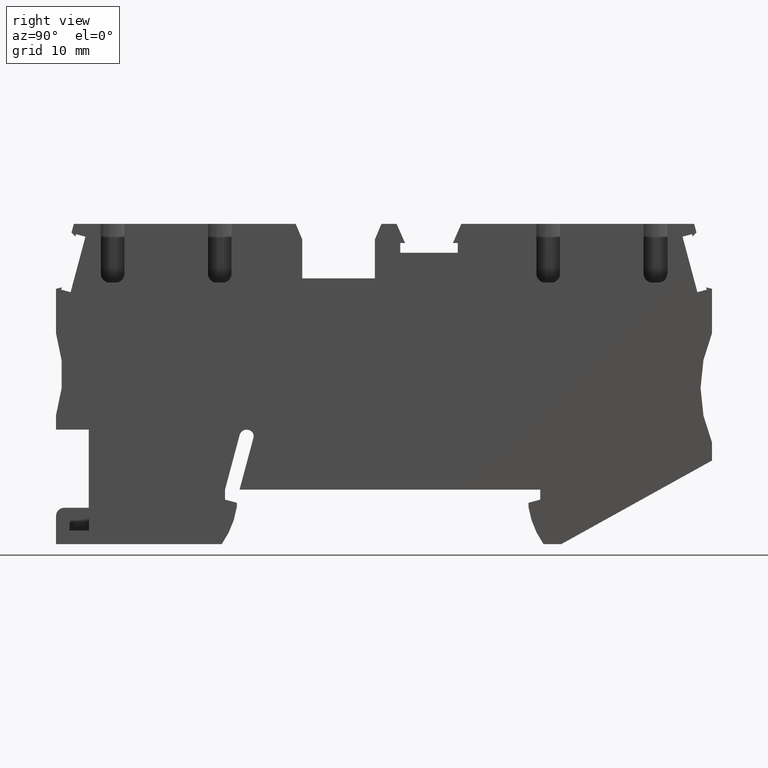
[diagram: clean part render]
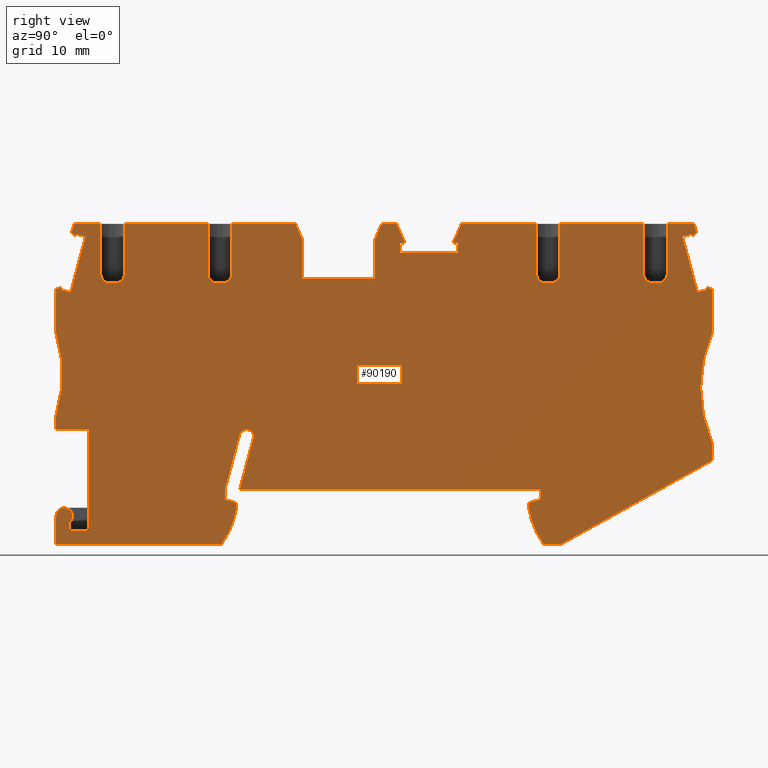
[diagram: same view with one face highlighted and labeled with its STEP entity id]
A machine part, right view. The second image highlights one B-rep face of the part: STEP entity #90190.
In plain terms, the highlighted planar face has unit normal (1, -0, 0).
Its self-contained STEP definition (entity closure, byte-faithful):
#4920=CARTESIAN_POINT('',(0.099605594521837,5.13367126584743E-13,
2.79951145379018E-12));
#4930=DIRECTION('',(-0.121869343404765,0.99254615164137,
-1.26162968961438E-13));
#4940=VECTOR('',#4930,1.);
#4950=LINE('',#4920,#4940);
#4960=CARTESIAN_POINT('',(0.849796820895159,-6.10981723483041,
-5.06899196408571E-12));
#4970=VERTEX_POINT('',#4960);
#4980=CARTESIAN_POINT('',(0.472001856341802,-3.03292416475368,
-3.95723683673764E-12));
#4990=VERTEX_POINT('',#4980);
#5000=EDGE_CURVE('',#4970,#4990,#4950,.T.);
#6190=CARTESIAN_POINT('',(18.579939487428,2.11222949998738,
-5.33404559022392E-12));
#6200=VERTEX_POINT('',#6190);
#6280=CARTESIAN_POINT('',(18.7139957651746,1.02042873317376,
-5.72861813511495E-12));
#6290=VERTEX_POINT('',#6280);
#6320=CARTESIAN_POINT('',(18.83928865911,5.13367126583545E-13,
3.08687232803303E-12));
#6330=DIRECTION('',(0.121869343405148,-0.992546151641323,
1.26162968961438E-13));
#6340=VECTOR('',#6330,1.);
#6350=LINE('',#6320,#6340);
#6360=EDGE_CURVE('',#6200,#6290,#6350,.T.);
#6590=CARTESIAN_POINT('',(20.0467569920994,0.833121357882625,
-6.02251513039278E-12));
#6600=VERTEX_POINT('',#6590);
#6630=CARTESIAN_POINT('',(-6.139533326109E-14,3.65050931863046,
2.34083951193818E-12));
#6640=DIRECTION('',(0.990268068741556,-0.139173100960171,
3.26134326783089E-14));
#6650=VECTOR('',#6640,1.);
#6660=LINE('',#6630,#6650);
#6670=EDGE_CURVE('',#6290,#6600,#6660,.T.);
#6920=CARTESIAN_POINT('',(2.04257352466948,-3.51594034940958,
-4.3928025885387E-12));
#6930=VERTEX_POINT('',#6920);
#6960=CARTESIAN_POINT('',(1.36529339281687,-2.92324175568978,
-4.07420139160326E-12));
#6970=DIRECTION('',(-8.02853260974632E-13,-3.78636309968469E-13,1.));
#6980=DIRECTION('',(0.992546151641275,0.12186934340553,
8.43013072998369E-13));
#6990=AXIS2_PLACEMENT_3D('',#6960,#6970,#6980);
#7000=CIRCLE('',#6990,0.89999999999984);
#7010=EDGE_CURVE('',#6930,#4990,#7000,.T.);
#7240=CARTESIAN_POINT('',(2.88740923989936,6.83499391210967,
-1.01720103301225E-12));
#7250=VERTEX_POINT('',#7240);
#7280=CARTESIAN_POINT('',(3.72664096617171,5.13367126584511E-13,
2.85512968659138E-12));
#7290=DIRECTION('',(-0.121869343405148,0.992546151641323,
-1.26162968961438E-13));
#7300=VECTOR('',#7290,1.);
#7310=LINE('',#7280,#7300);
#7320=CARTESIAN_POINT('',(4.24015895169796,-4.1822683711209,
-4.99901875785571E-12));
#7330=VERTEX_POINT('',#7320);
#7340=EDGE_CURVE('',#7330,#7250,#7310,.T.);
#7640=CARTESIAN_POINT('',(-0.685756599574096,6.39626431347665,
-5.49342853672896E-13));
#7650=VERTEX_POINT('',#7640);
#7680=CARTESIAN_POINT('',(-6.13953332613174E-14,6.48046463644162,
1.98645097304486E-12));
#7690=DIRECTION('',(-0.992546151641323,-0.121869343405148,
4.13556346824791E-17));
#7700=VECTOR('',#7690,1.);
#7710=LINE('',#7680,#7700);
#7720=EDGE_CURVE('',#7250,#7650,#7710,.T.);
#7890=CARTESIAN_POINT('',(0.0996059055750038,5.13367126584743E-13,
2.79951145855997E-12));
#7900=DIRECTION('',(-0.12186934340515,0.992546151641322,
-1.26162968961438E-13));
#7910=VECTOR('',#7900,1.);
#7920=LINE('',#7890,#7910);
#7930=CARTESIAN_POINT('',(-0.880747549022107,7.98433815610086,
4.06550075884237E-12));
#7940=VERTEX_POINT('',#7930);
#7950=EDGE_CURVE('',#7650,#7940,#7920,.T.);
#8260=CARTESIAN_POINT('',(-1.97757163966829,16.9172535208724,
2.93003403818948E-12));
#8270=VERTEX_POINT('',#8260);
#8300=CARTESIAN_POINT('',(-15.6315898433381,10.7069566766101,
1.21747719667449E-12));
#8310=DIRECTION('',(-1.5334350813322E-14,1.25227609306364E-13,1.));
#8320=DIRECTION('',(0.992546151641323,0.121869343405148,
-4.13556346824791E-17));
#8330=AXIS2_PLACEMENT_3D('',#8300,#8310,#8320);
#8340=CIRCLE('',#8330,15.);
#8350=EDGE_CURVE('',#7940,#8270,#8340,.T.);
#8570=CARTESIAN_POINT('',(-2.57472175471206,21.7806509272937,
5.01051455100459E-12));
#8580=VERTEX_POINT('',#8570);
#8610=CARTESIAN_POINT('',(0.0996059055751208,5.13367126584743E-13,
2.79951145855998E-12));
#8620=DIRECTION('',(-0.12186934340515,0.992546151641322,
-1.26162968961438E-13));
#8630=VECTOR('',#8620,1.);
#8640=LINE('',#8610,#8630);
#8650=EDGE_CURVE('',#8270,#8580,#8640,.T.);
#8830=CARTESIAN_POINT('',(-6.13953332626309E-14,22.820906040404,
-5.98234389840731E-14));
#8840=DIRECTION('',(-0.927183854569499,-0.374606593409201,
3.26933256286188E-14));
#8850=VECTOR('',#8840,1.);
#8860=LINE('',#8830,#8850);
#8870=CARTESIAN_POINT('',(-1.96144346352883,22.0284314406619,
4.98888981414351E-12));
#8880=VERTEX_POINT('',#8870);
#8890=EDGE_CURVE('',#8880,#8580,#8860,.T.);
#9180=CARTESIAN_POINT('',(-0.939754526024508,21.609858680552,
4.67004283477524E-12));
#9190=VERTEX_POINT('',#9180);
#9220=CARTESIAN_POINT('',(-6.13953332625229E-14,21.4777847950489,
1.08372423580327E-13));
#9230=DIRECTION('',(-0.990268068741539,0.13917310096029,
-3.26134326783236E-14));
#9240=VECTOR('',#9230,1.);
#9250=LINE('',#9220,#9240);
#9260=CARTESIAN_POINT('',(-1.99934135957711,21.7587738985794,
4.9037001323661E-12));
#9270=VERTEX_POINT('',#9260);
#9280=EDGE_CURVE('',#9190,#9270,#9250,.T.);
#9550=CARTESIAN_POINT('',(-5.05733760539997,5.13367126585073E-13,
2.7204330776382E-12));
#9560=DIRECTION('',(0.139173100960779,0.990268068741471,
-1.21874773667014E-13));
#9570=VECTOR('',#9560,1.);
#9580=LINE('',#9550,#9570);
#9590=EDGE_CURVE('',#9270,#8880,#9580,.T.);
#9810=CARTESIAN_POINT('',(-0.0594846624507956,27.8733042153425,
6.64877826274898E-12));
#9820=VERTEX_POINT('',#9810);
#9850=CARTESIAN_POINT('',(-3.97682210279437,5.13367126585004E-13,
2.73700208141439E-12));
#9860=DIRECTION('',(0.139173100960265,0.990268068741543,
-1.21874773667031E-13));
#9870=VECTOR('',#9860,1.);
#9880=LINE('',#9850,#9870);
#9890=EDGE_CURVE('',#9190,#9820,#9880,.T.);
#10070=CARTESIAN_POINT('',(-5.59254621883103,5.13367126585107E-13,
2.71222600100154E-12));
#10080=DIRECTION('',(-0.139173100960491,-0.990268068741511,
1.21874773667023E-13));
#10090=VECTOR('',#10080,1.);
#10100=LINE('',#10070,#10090);
#10110=CARTESIAN_POINT('',(-1.50051398889333,29.1163222318287,
7.32051649734597E-12));
#10120=VERTEX_POINT('',#10110);
#10130=CARTESIAN_POINT('',(-1.63922510601537,28.1293413489036,
7.00871143271681E-12));
#10140=VERTEX_POINT('',#10130);
#10150=EDGE_CURVE('',#10120,#10140,#10100,.T.);
#10510=CARTESIAN_POINT('',(13.8245185472284,25.4566955825703,
3.42881051218878E-12));
#10520=VERTEX_POINT('',#10510);
#10550=CARTESIAN_POINT('',(16.9502077363701,5.13367126581197E-13,
-1.66554937811444E-11));
#10560=DIRECTION('',(-0.121869343405031,0.992546151641337,
-1.2469192345381E-13));
#10570=VECTOR('',#10560,1.);
#10580=LINE('',#10550,#10570);
#10590=CARTESIAN_POINT('',(13.1542371585003,30.9156994166009,
5.40167323663024E-12));
#10600=VERTEX_POINT('',#10590);
#10610=EDGE_CURVE('',#10520,#10600,#10580,.T.);
#11140=CARTESIAN_POINT('',(14.9389340422569,24.5860187743699,
2.94015165633678E-12));
#11150=VERTEX_POINT('',#11140);
#13080=CARTESIAN_POINT('',(15.5344617332453,24.6591403803754,
3.3455761391092E-12));
#13090=VERTEX_POINT('',#13080);
#13760=CARTESIAN_POINT('',(16.4051385414816,25.7735558754218,
4.06388659876091E-12));
#13770=VERTEX_POINT('',#13760);
#13800=CARTESIAN_POINT('',(15.4125923898402,25.6516865320167,
-1.77973213771283E-13));
#13810=DIRECTION('',(-8.51926806997207E-13,2.10356492885437E-14,1.));
#13820=DIRECTION('',(1.,4.16333634642381E-17,8.51926806997207E-13));
#13830=AXIS2_PLACEMENT_3D('',#13800,#13810,#13820);
#13840=CIRCLE('',#13830,1.);
#13850=EDGE_CURVE('',#13090,#13770,#13840,.T.);
#14070=CARTESIAN_POINT('',(15.7348571527678,31.232559709454,
5.06377563368466E-12));
#14080=VERTEX_POINT('',#14070);
#14110=CARTESIAN_POINT('',(19.5697332825631,5.13367126581304E-13,
-1.44238497467286E-11));
#14120=DIRECTION('',(0.121869343405031,-0.992546151641337,
1.2469192345381E-13));
#14130=VECTOR('',#14120,1.);
#14140=LINE('',#14110,#14130);
#14150=EDGE_CURVE('',#14080,#13770,#14140,.T.);
#22870=CARTESIAN_POINT('',(-6.13953332626253E-14,22.7517483176508,
-5.11629826986193E-14));
#22880=DIRECTION('',(-0.992546151641501,-0.121869343403698,
4.13556344982769E-17));
#22890=VECTOR('',#22880,1.);
#22900=LINE('',#22870,#22890);
#22910=EDGE_CURVE('',#13090,#11150,#22900,.T.);
#23870=CARTESIAN_POINT('',(14.8170646988554,25.5785649259736,
-1.77948400390472E-13));
#23880=DIRECTION('',(-8.51926806997207E-13,2.10356492885437E-14,1.));
#23890=DIRECTION('',(1.,4.16333634642381E-17,8.51926806997207E-13));
#23900=AXIS2_PLACEMENT_3D('',#23870,#23880,#23890);
#23910=CIRCLE('',#23900,1.);
#23920=EDGE_CURVE('',#10520,#11150,#23910,.T.);
#24160=CARTESIAN_POINT('',(2.11247365142379,24.0186372927697,
3.98937213770513E-12));
#24170=VERTEX_POINT('',#24160);
#24200=CARTESIAN_POINT('',(5.06159179595588,5.13367126580699E-13,
-2.68836443428059E-11));
#24210=DIRECTION('',(-0.121869343405031,0.992546151641337,
-1.2469192345381E-13));
#24220=VECTOR('',#24210,1.);
#24230=LINE('',#24200,#24220);
#24240=CARTESIAN_POINT('',(1.44219256913256,29.4776411644216,
6.93520851153713E-12));
#24250=VERTEX_POINT('',#24240);
#24260=EDGE_CURVE('',#24170,#24250,#24230,.T.);
#24790=CARTESIAN_POINT('',(3.22688945290176,23.1479605222088,
3.90420525922719E-14));
#24800=VERTEX_POINT('',#24790);
#26730=CARTESIAN_POINT('',(3.82241714388441,23.2210821282585,
4.3957387083624E-12));
#26740=VERTEX_POINT('',#26730);
#27410=CARTESIAN_POINT('',(4.69309395212758,24.3354976232485,
4.62444818415165E-12));
#27420=VERTEX_POINT('',#27410);
#27450=CARTESIAN_POINT('',(3.70054749404993,24.2136282422178,
-1.77485217269987E-13));
#27460=DIRECTION('',(-8.51926806997207E-13,2.10356492885437E-14,1.));
#27470=DIRECTION('',(1.,4.16333634642381E-17,8.51926806997207E-13));
#27480=AXIS2_PLACEMENT_3D('',#27450,#27460,#27470);
#27490=CIRCLE('',#27480,1.);
#27500=EDGE_CURVE('',#26740,#27420,#27490,.T.);
#27740=CARTESIAN_POINT('',(4.02281256340005,29.7945014572747,
6.59731090859154E-12));
#27750=VERTEX_POINT('',#27740);
#27780=CARTESIAN_POINT('',(7.68111734214887,5.13367126580806E-13,
-2.46520003083901E-11));
#27790=DIRECTION('',(0.121869343405031,-0.992546151641337,
1.2469192345381E-13));
#27800=VECTOR('',#27790,1.);
#27810=LINE('',#27780,#27800);
#27820=EDGE_CURVE('',#27750,#27420,#27810,.T.);
#36520=CARTESIAN_POINT('',(-6.13953332626253E-14,22.7517483176568,
-5.11629826993673E-14));
#36530=DIRECTION('',(-0.992546151641501,-0.121869343403698,
4.13556344982769E-17));
#36540=VECTOR('',#36530,1.);
#36550=LINE('',#36520,#36540);
#36560=EDGE_CURVE('',#26740,#24800,#36550,.T.);
#37520=CARTESIAN_POINT('',(3.10501980306513,24.1405066361747,
-1.77460403889181E-13));
#37530=DIRECTION('',(-8.51926806997207E-13,2.10356492885437E-14,1.));
#37540=DIRECTION('',(1.,4.16333634642381E-17,8.51926806997207E-13));
#37550=AXIS2_PLACEMENT_3D('',#37520,#37530,#37540);
#37560=CIRCLE('',#37550,1.);
#37570=EDGE_CURVE('',#24170,#24800,#37560,.T.);
#38430=CARTESIAN_POINT('',(-6.13953332631517E-14,29.3005621830834,
-8.71255286859113E-13));
#38440=DIRECTION('',(0.992546151641338,0.121869343405022,
-4.13556346666009E-17));
#38450=VECTOR('',#38440,1.);
#38460=LINE('',#38430,#38450);
#38470=CARTESIAN_POINT('',(22.7387593504523,32.0925307654026,
4.14670850674618E-12));
#38480=VERTEX_POINT('',#38470);
#38490=EDGE_CURVE('',#14080,#38480,#38460,.T.);
#38560=CARTESIAN_POINT('',(-6.13953332631517E-14,29.3005621830834,
-8.71255286859113E-13));
#38570=DIRECTION('',(0.992546151641338,0.121869343405022,
-4.13556346666009E-17));
#38580=VECTOR('',#38570,1.);
#38590=LINE('',#38560,#38580);
#38600=EDGE_CURVE('',#27750,#10600,#38590,.T.);
#38670=CARTESIAN_POINT('',(-6.13953332631517E-14,29.3005621830834,
-8.71255286859113E-13));
#38680=DIRECTION('',(0.992546151641338,0.121869343405022,
-4.13556346666009E-17));
#38690=VECTOR('',#38680,1.);
#38700=LINE('',#38670,#38690);
#38710=EDGE_CURVE('',#10120,#24250,#38700,.T.);
#41830=CARTESIAN_POINT('',(23.6590813655683,30.4927653966395,
3.44353790725255E-12));
#41840=VERTEX_POINT('',#41830);
#41870=CARTESIAN_POINT('',(41.2011308712362,5.13367126582114E-13,
3.42977666134592E-12));
#41880=DIRECTION('',(-0.498657173381252,0.866799298243498,
-1.16193787899674E-13));
#41890=VECTOR('',#41880,1.);
#41900=LINE('',#41870,#41890);
#41910=EDGE_CURVE('',#41840,#38480,#41900,.T.);
#42980=CARTESIAN_POINT('',(24.1831195422103,26.2248169445834,
1.90111795905425E-12));
#42990=VERTEX_POINT('',#42980);
#43020=CARTESIAN_POINT('',(27.40312217551,5.13367126582997E-13,
3.21819315548039E-12));
#43030=DIRECTION('',(0.12186934340515,-0.992546151641322,
1.26162968961438E-13));
#43040=VECTOR('',#43030,1.);
#43050=LINE('',#43020,#43040);
#43060=EDGE_CURVE('',#41840,#42990,#43050,.T.);
#43860=CARTESIAN_POINT('',(32.1234887553407,27.1997716918245,
8.61433026914367E-13));
#43870=VERTEX_POINT('',#43860);
#43900=CARTESIAN_POINT('',(-6.13953332626658E-14,23.2555032303306,
-1.14247006089848E-13));
#43910=DIRECTION('',(-0.992546151641323,-0.121869343405148,
4.13556346824791E-17));
#43920=VECTOR('',#43910,1.);
#43930=LINE('',#43900,#43920);
#43940=EDGE_CURVE('',#43870,#42990,#43930,.T.);
#44630=CARTESIAN_POINT('',(31.5994505786987,31.4677201438803,
2.40385297511254E-12));
#44640=VERTEX_POINT('',#44630);
#44670=CARTESIAN_POINT('',(35.4632007791807,5.13367126582481E-13,
3.34178922837203E-12));
#44680=DIRECTION('',(-0.121869343405153,0.992546151641322,
-1.26162968961438E-13));
#44690=VECTOR('',#44680,1.);
#44700=LINE('',#44670,#44690);
#44710=EDGE_CURVE('',#43870,#44640,#44700,.T.);
#45070=CARTESIAN_POINT('',(32.1054168262382,33.2426116906963,
2.92027024163596E-12));
#45080=VERTEX_POINT('',#45070);
#45110=CARTESIAN_POINT('',(22.6289845756448,5.13367126583302E-13,
3.14498485469299E-12));
#45120=DIRECTION('',(-0.274147194873168,-0.961687743263464,
1.16225987727442E-13));
#45130=VECTOR('',#45120,1.);
#45140=LINE('',#45110,#45130);
#45150=EDGE_CURVE('',#45080,#44640,#45140,.T.);
#45390=CARTESIAN_POINT('',(33.7648010461224,33.4463584535042,
2.70299611700321E-12));
#45400=VERTEX_POINT('',#45390);
#45430=CARTESIAN_POINT('',(-6.13953332631517E-14,29.3005621830779,
-8.71255286858425E-13));
#45440=DIRECTION('',(-0.992546151641308,-0.121869343405268,
4.13556346977514E-17));
#45450=VECTOR('',#45440,1.);
#45460=LINE('',#45430,#45450);
#45470=EDGE_CURVE('',#45400,#45080,#45460,.T.);
#45650=CARTESIAN_POINT('',(53.6422195780392,5.13367126581318E-13,
3.62055268007569E-12));
#45660=DIRECTION('',(0.51089298590022,-0.859644320028905,
1.15485415324874E-13));
#45670=VECTOR('',#45660,1.);
#45680=LINE('',#45650,#45670);
#45690=CARTESIAN_POINT('',(34.9394936524422,31.4697843867778,
1.82770730934796E-12));
#45700=VERTEX_POINT('',#45690);
#45710=EDGE_CURVE('',#45400,#45700,#45680,.T.);
#46000=CARTESIAN_POINT('',(66.6435147722447,36.5134075821019,
-1.93199823343591E-12));
#46010=VERTEX_POINT('',#46000);
#46090=CARTESIAN_POINT('',(66.2667353146247,36.0311518681402,
-2.03098464460655E-12));
#46100=VERTEX_POINT('',#46090);
#46130=CARTESIAN_POINT('',(38.1161142534881,5.13367126582312E-13,
3.38246993426444E-12));
#46140=DIRECTION('',(0.615661475326723,0.788010753605891,
-8.92399337368644E-14));
#46150=VECTOR('',#46140,1.);
#46160=LINE('',#46130,#46150);
#46170=EDGE_CURVE('',#46100,#46010,#46160,.T.);
#46390=CARTESIAN_POINT('',(66.1647270843102,36.2836310979324,
-1.927476130594E-12));
#46400=VERTEX_POINT('',#46390);
#46430=CARTESIAN_POINT('',(80.8242656163768,5.1336712657958E-13,
4.03737170985142E-12));
#46440=DIRECTION('',(0.374606593415343,-0.927183854567018,
1.21853366415301E-13));
#46450=VECTOR('',#46440,1.);
#46460=LINE('',#46430,#46450);
#46470=EDGE_CURVE('',#46400,#46100,#46460,.T.);
#46690=CARTESIAN_POINT('',(65.1726403599228,35.8828020429771,
-1.89249427217025E-12));
#46700=VERTEX_POINT('',#46690);
#46730=CARTESIAN_POINT('',(-6.13953332615643E-14,9.55134613065458,
1.60189182506141E-12));
#46740=DIRECTION('',(0.927183854566833,0.3746065934158,
-3.2693325629486E-14));
#46750=VECTOR('',#46740,1.);
#46760=LINE('',#46730,#46750);
#46770=EDGE_CURVE('',#46700,#46400,#46760,.T.);
#47010=CARTESIAN_POINT('',(69.6842605088353,25.7162201147247,
-6.13025484276921E-12));
#47020=VERTEX_POINT('',#47010);
#47050=CARTESIAN_POINT('',(72.8418153037042,5.1336712658009E-13,
3.91496601640699E-12));
#47060=DIRECTION('',(0.121869343405147,-0.992546151641323,
1.26162968961438E-13));
#47070=VECTOR('',#47060,1.);
#47080=LINE('',#47050,#47070);
#47090=CARTESIAN_POINT('',(69.0871103937917,30.5796175211444,
-4.37264196155841E-12));
#47100=VERTEX_POINT('',#47090);
#47110=EDGE_CURVE('',#47100,#47020,#47080,.T.);
#47340=CARTESIAN_POINT('',(72.8418153037041,5.1336712658009E-13,
3.91496601640699E-12));
#47350=DIRECTION('',(0.121869343405147,-0.992546151641323,
1.26162968961438E-13));
#47360=VECTOR('',#47350,1.);
#47370=LINE('',#47340,#47360);
#47380=CARTESIAN_POINT('',(71.146692629697,13.8056662950286,
-1.04346826051847E-11));
#47390=VERTEX_POINT('',#47380);
#47400=CARTESIAN_POINT('',(71.390431316507,11.8205739917486,
-1.11520872322529E-11));
#47410=VERTEX_POINT('',#47400);
#47420=EDGE_CURVE('',#47390,#47410,#47370,.T.);
#47750=CARTESIAN_POINT('',(84.0607301811666,21.4363696780225,
1.40257546589668E-12));
#47760=DIRECTION('',(-1.5334350813322E-14,1.25227609306364E-13,1.));
#47770=DIRECTION('',(0.992546151641323,0.121869343405148,
-4.13556346824791E-17));
#47780=AXIS2_PLACEMENT_3D('',#47750,#47760,#47770);
#47790=CIRCLE('',#47780,15.);
#47800=EDGE_CURVE('',#47020,#47390,#47790,.T.);
#47970=CARTESIAN_POINT('',(-6.1395333260297E-14,-6.21415916433732,
3.57616836266006E-12));
#47980=DIRECTION('',(-0.99254615164133,-0.12186934340509,
4.13556346751585E-17));
#47990=VECTOR('',#47980,1.);
#48000=LINE('',#47970,#47990);
#48010=CARTESIAN_POINT('',(56.0528727208691,0.668268200037711,
-1.22970949251003E-11));
#48020=VERTEX_POINT('',#48010);
#48030=CARTESIAN_POINT('',(54.108775151386,0.429563033616439,
-1.20425414030475E-11));
#48040=VERTEX_POINT('',#48030);
#48050=EDGE_CURVE('',#48020,#48040,#48000,.T.);
#48380=CARTESIAN_POINT('',(-6.13953332575742E-14,-40.0891165681464,
7.81824829369397E-12));
#48390=DIRECTION('',(-0.808793328533599,-0.588092978804834,
6.1243157150379E-14));
#48400=VECTOR('',#48390,1.);
#48410=LINE('',#48380,#48400);
#48420=EDGE_CURVE('',#47410,#48020,#48410,.T.);
#48650=CARTESIAN_POINT('',(51.9625327047183,4.29682788159188,
-1.08906799675195E-11));
#48660=VERTEX_POINT('',#48650);
#48690=CARTESIAN_POINT('',(61.113993705743,6.8464869856104,
2.87753624378782E-12));
#48700=DIRECTION('',(1.5334350813322E-14,-1.25227609306364E-13,-1.));
#48710=DIRECTION('',(-0.992546151641323,-0.121869343405148,
4.13556346824791E-17));
#48720=AXIS2_PLACEMENT_3D('',#48690,#48700,#48710);
#48730=CIRCLE('',#48720,9.499999999999);
#48740=EDGE_CURVE('',#48040,#48660,#48730,.T.);
#48950=CARTESIAN_POINT('',(51.9074884597862,4.74512728118791,
-1.01942509206042E-11));
#48960=VERTEX_POINT('',#48950);
#48990=CARTESIAN_POINT('',(52.4901168294318,5.13367126581392E-13,
3.60288593235556E-12));
#49000=DIRECTION('',(-0.121869343404462,0.992546151641407,
-1.26162968961438E-13));
#49010=VECTOR('',#49000,1.);
#49020=LINE('',#48990,#49010);
#49030=EDGE_CURVE('',#48660,#48960,#49020,.T.);
#49280=CARTESIAN_POINT('',(53.1553472271283,5.24929494933234,
-1.02382515282717E-11));
#49290=VERTEX_POINT('',#49280);
#49320=CARTESIAN_POINT('',(-6.13953332594922E-14,-16.2268593737975,
4.83003487259209E-12));
#49330=DIRECTION('',(0.927183854566813,0.374606593415851,
-3.26933256294927E-14));
#49340=VECTOR('',#49330,1.);
#49350=LINE('',#49320,#49340);
#49360=EDGE_CURVE('',#48960,#49290,#49350,.T.);
#49590=CARTESIAN_POINT('',(53.0212909493826,6.34109571613769,
-9.8436789833837E-12));
#49600=VERTEX_POINT('',#49590);
#49630=CARTESIAN_POINT('',(53.7998796025318,5.13367126581308E-13,
3.6229702942005E-12));
#49640=DIRECTION('',(-0.121869343405148,0.992546151641323,
-1.26162968961438E-13));
#49650=VECTOR('',#49640,1.);
#49660=LINE('',#49630,#49650);
#49670=EDGE_CURVE('',#49290,#49600,#49660,.T.);
#49880=CARTESIAN_POINT('',(20.9898097165992,8.15460557620915,
-3.51899881951453E-12));
#49890=VERTEX_POINT('',#49880);
#49970=CARTESIAN_POINT('',(20.3722274973538,8.94793178287745,
-3.62781538618167E-12));
#49980=VERTEX_POINT('',#49970);
#50010=CARTESIAN_POINT('',(20.2966220684798,8.25202674688108,
2.07583800834026E-12));
#50020=DIRECTION('',(-1.5334350813322E-14,1.25227609306364E-13,1.));
#50030=DIRECTION('',(0.992546151641323,0.121869343405148,
-4.13556346824791E-17));
#50040=AXIS2_PLACEMENT_3D('',#50010,#50020,#50030);
#50050=CIRCLE('',#50040,0.700000000000238);
#50060=EDGE_CURVE('',#49890,#49980,#50050,.T.);
#50250=CARTESIAN_POINT('',(18.2830849904164,5.1336712658358E-13,
3.07834330585363E-12));
#50260=DIRECTION('',(0.139173100960267,0.990268068741543,
-1.21874773667031E-13));
#50270=VECTOR('',#50260,1.);
#50280=LINE('',#50250,#50270);
#50290=CARTESIAN_POINT('',(19.4454516024282,8.27066819740264,
-3.58927150741991E-12));
#50300=VERTEX_POINT('',#50290);
#50310=EDGE_CURVE('',#6200,#50300,#50280,.T.);
#50570=CARTESIAN_POINT('',(20.2376660574214,8.15932971663403,
2.08654218367178E-12));
#50580=DIRECTION('',(-1.5334350813322E-14,1.25227609306364E-13,1.));
#50590=DIRECTION('',(0.992546151641323,0.121869343405148,
-4.13556346824791E-17));
#50600=AXIS2_PLACEMENT_3D('',#50570,#50580,#50590);
#50610=CIRCLE('',#50600,0.80000000000001);
#50620=EDGE_CURVE('',#49980,#50300,#50610,.T.);
#50830=CARTESIAN_POINT('',(20.1680133300546,2.30722044942727,
-5.54198257665483E-12));
#50840=VERTEX_POINT('',#50830);
#50890=CARTESIAN_POINT('',(19.8437546422496,5.1336712658348E-13,
3.10227516179854E-12));
#50900=DIRECTION('',(0.139173100960126,0.990268068741562,
-1.21874773667035E-13));
#50910=VECTOR('',#50900,1.);
#50920=LINE('',#50890,#50910);
#50930=EDGE_CURVE('',#50840,#49890,#50920,.T.);
#51100=CARTESIAN_POINT('',(-6.13953332607829E-14,-0.169100211587417,
2.81916008189116E-12));
#51110=DIRECTION('',(-0.992546151641323,-0.121869343405148,
4.13556346824791E-17));
#51120=VECTOR('',#51110,1.);
#51130=LINE('',#51100,#51120);
#51140=EDGE_CURVE('',#49600,#50840,#51130,.T.);
#51350=CARTESIAN_POINT('',(-6.1395333264035E-14,40.289177682555,
-2.24733333544479E-12));
#51360=DIRECTION('',(0.990268068742577,-0.139173100952909,
3.26134326774151E-14));
#51370=VECTOR('',#51360,1.);
#51380=LINE('',#51350,#51370);
#51390=CARTESIAN_POINT('',(68.4321055573535,30.6716724475867,
-4.22820202030681E-12));
#51400=VERTEX_POINT('',#51390);
#51410=EDGE_CURVE('',#51400,#47100,#51380,.T.);
#51700=CARTESIAN_POINT('',(68.5341137876666,30.4191932177992,
-4.33171053431756E-12));
#51710=VERTEX_POINT('',#51700);
#51740=CARTESIAN_POINT('',(-6.1395333261016E-14,2.7296138831693,
2.45616104574212E-12));
#51750=DIRECTION('',(-0.927183854566592,-0.374606593416397,
3.26933256295645E-14));
#51760=VECTOR('',#51750,1.);
#51770=LINE('',#51740,#51760);
#51780=CARTESIAN_POINT('',(67.5420270632794,30.0183641628432,
-4.29672867589407E-12));
#51790=VERTEX_POINT('',#51780);
#51800=EDGE_CURVE('',#51710,#51790,#51770,.T.);
#52040=CARTESIAN_POINT('',(80.8242656164402,5.1336712657958E-13,
4.03737170985239E-12));
#52050=DIRECTION('',(0.374606593416855,-0.927183854566407,
1.21853366415248E-13));
#52060=VECTOR('',#52050,1.);
#52070=LINE('',#52040,#52060);
#52080=EDGE_CURVE('',#51400,#51710,#52070,.T.);
#52280=CARTESIAN_POINT('',(79.6702334417447,5.13367126579653E-13,
4.01967537563575E-12));
#52290=DIRECTION('',(-0.374606593416089,0.927183854566717,
-1.21853366415275E-13));
#52300=VECTOR('',#52290,1.);
#52310=LINE('',#52280,#52300);
#52320=EDGE_CURVE('',#51790,#46700,#52310,.T.);
#52510=CARTESIAN_POINT('',(81.3958890300398,5.13367126579543E-13,
4.04613718380964E-12));
#52520=DIRECTION('',(0.374606593416301,-0.927183854566631,
1.21853366415267E-13));
#52530=VECTOR('',#52520,1.);
#52540=LINE('',#52510,#52530);
#52550=CARTESIAN_POINT('',(66.2701516819956,37.4375136583273,
-1.55314391413653E-12));
#52560=VERTEX_POINT('',#52550);
#52570=EDGE_CURVE('',#52560,#46010,#52540,.T.);
#53520=CARTESIAN_POINT('',(-6.13953332631517E-14,29.3005621830769,
-8.71255286858289E-13));
#53530=DIRECTION('',(-0.992546151641308,-0.121869343405262,
4.13556346970446E-17));
#53540=VECTOR('',#53530,1.);
#53550=LINE('',#53520,#53540);
#53560=CARTESIAN_POINT('',(63.3274451239697,37.0761947257337,
-1.16783592832795E-12));
#53570=VERTEX_POINT('',#53560);
#53580=EDGE_CURVE('',#52560,#53570,#53550,.T.);
#53980=CARTESIAN_POINT('',(60.7468251297023,36.75933443288,
-8.29938325382588E-13));
#53990=VERTEX_POINT('',#53980);
#54020=CARTESIAN_POINT('',(-6.13953332631517E-14,29.3005621830769,
-8.71255286858289E-13));
#54030=DIRECTION('',(-0.992546151641308,-0.121869343405262,
4.13556346970446E-17));
#54040=VECTOR('',#54030,1.);
#54050=LINE('',#54020,#54040);
#54060=CARTESIAN_POINT('',(51.6154005346022,35.6381364735516,
3.65699346577915E-13));
#54070=VERTEX_POINT('',#54060);
#54080=EDGE_CURVE('',#53990,#54070,#54050,.T.);
#54480=CARTESIAN_POINT('',(49.0347805403348,35.3212761806979,
7.03596949523278E-13));
#54490=VERTEX_POINT('',#54480);
#54520=CARTESIAN_POINT('',(-6.13953332631517E-14,29.3005621830769,
-8.71255286858289E-13));
#54530=DIRECTION('',(-0.992546151641308,-0.121869343405262,
4.13556346970446E-17));
#54540=VECTOR('',#54530,1.);
#54550=LINE('',#54520,#54540);
#54560=CARTESIAN_POINT('',(40.8310435482326,34.3139839363588,
1.77776636268109E-12));
#54570=VERTEX_POINT('',#54560);
#54580=EDGE_CURVE('',#54490,#54570,#54550,.T.);
#58480=CARTESIAN_POINT('',(63.9977265126815,31.6171908917166,
-2.16772496324621E-12));
#58490=VERTEX_POINT('',#58480);
#58590=CARTESIAN_POINT('',(67.8798294133238,5.13367126583274E-13,
2.67327244442648E-11));
#58600=DIRECTION('',(0.121869343405264,-0.992546151641308,
1.24698862347713E-13));
#58610=VECTOR('',#58600,1.);
#58620=LINE('',#58590,#58610);
#58630=EDGE_CURVE('',#53570,#58490,#58620,.T.);
#59630=CARTESIAN_POINT('',(63.127049704465,30.502775396634,
3.67579348657544E-14));
#59640=VERTEX_POINT('',#59630);
#60230=CARTESIAN_POINT('',(62.5315220134603,30.4296537906273,
-2.80805905298748E-12));
#60240=VERTEX_POINT('',#60230);
#67310=CARTESIAN_POINT('',(-6.13953332626253E-14,22.7517483176852,
-5.11629827029264E-14));
#67320=DIRECTION('',(0.992546151641531,0.121869343403448,
-4.13556344664448E-17));
#67330=VECTOR('',#67320,1.);
#67340=LINE('',#67310,#67330);
#67350=EDGE_CURVE('',#60240,#59640,#67340,.T.);
#70800=CARTESIAN_POINT('',(62.4096526700553,31.4221999422686,
-1.79931403075802E-13));
#70810=DIRECTION('',(8.51926806997206E-13,-2.10356492885439E-14,-1.));
#70820=DIRECTION('',(-0.970295726276058,-0.241921895599423,
-8.21531955778347E-13));
#70830=AXIS2_PLACEMENT_3D('',#70800,#70810,#70820);
#70840=CIRCLE('',#70830,1.);
#70850=CARTESIAN_POINT('',(61.417106518414,31.3003305988636,
-3.77577473933222E-12));
#70860=VERTEX_POINT('',#70850);
#70870=EDGE_CURVE('',#60240,#70860,#70840,.T.);
#71120=CARTESIAN_POINT('',(65.2603038671307,5.13367126583168E-13,
2.4501080409849E-11));
#71130=DIRECTION('',(-0.121869343405264,0.992546151641308,
-1.24698862347713E-13));
#71140=VECTOR('',#71130,1.);
#71150=LINE('',#71120,#71140);
#71160=EDGE_CURVE('',#70860,#53990,#71150,.T.);
#71450=CARTESIAN_POINT('',(63.0051803610401,31.4953215483116,
-1.79956216456592E-13));
#71460=DIRECTION('',(8.51926806997206E-13,-2.10356492885439E-14,-1.));
#71470=DIRECTION('',(-0.970295726276058,-0.241921895599423,
-8.21531955778347E-13));
#71480=AXIS2_PLACEMENT_3D('',#71450,#71460,#71470);
#71490=CIRCLE('',#71480,1.);
#71500=EDGE_CURVE('',#58490,#59640,#71490,.T.);
#71740=CARTESIAN_POINT('',(52.2856819233144,30.1791326395317,
-6.34189688341348E-13));
#71750=VERTEX_POINT('',#71740);
#71850=CARTESIAN_POINT('',(55.9912134729092,5.13367126582789E-13,
1.6604049605339E-11));
#71860=DIRECTION('',(0.121869343405264,-0.992546151641308,
1.24698862347713E-13));
#71870=VECTOR('',#71860,1.);
#71880=LINE('',#71850,#71870);
#71890=EDGE_CURVE('',#54070,#71750,#71880,.T.);
#72890=CARTESIAN_POINT('',(51.4150051150799,29.0647171444612,
-1.83590507488278E-12));
#72900=VERTEX_POINT('',#72890);
#73490=CARTESIAN_POINT('',(50.819477424096,28.9915955384194,
-1.757928704972E-12));
#73500=VERTEX_POINT('',#73490);
#80570=CARTESIAN_POINT('',(-6.13953332626253E-14,22.751748317678,
-5.11629827020266E-14));
#80580=DIRECTION('',(0.992546151641531,0.121869343403448,
-4.13556344664448E-17));
#80590=VECTOR('',#80580,1.);
#80600=LINE('',#80570,#80590);
#80610=EDGE_CURVE('',#73500,#72900,#80600,.T.);
#84060=CARTESIAN_POINT('',(50.6976080806882,29.9841416900838,
-1.79443406586023E-13));
#84070=DIRECTION('',(8.51926806997206E-13,-2.10356492885439E-14,-1.));
#84080=DIRECTION('',(-0.970295726276058,-0.241921895599423,
-8.21531955778347E-13));
#84090=AXIS2_PLACEMENT_3D('',#84060,#84070,#84080);
#84100=CIRCLE('',#84090,1.);
#84110=CARTESIAN_POINT('',(49.7050619290469,29.8622723466788,
-2.24223946442736E-12));
#84120=VERTEX_POINT('',#84110);
#84130=EDGE_CURVE('',#73500,#84120,#84100,.T.);
#84380=CARTESIAN_POINT('',(53.3716879267162,5.13367126582683E-13,
1.43724055709231E-11));
#84390=DIRECTION('',(-0.121869343405264,0.992546151641308,
-1.24698862347713E-13));
#84400=VECTOR('',#84390,1.);
#84410=LINE('',#84380,#84400);
#84420=EDGE_CURVE('',#84120,#54490,#84410,.T.);
#84710=CARTESIAN_POINT('',(51.293135771673,30.0572632961267,
-1.79468219966815E-13));
#84720=DIRECTION('',(8.51926806997206E-13,-2.10356492885439E-14,-1.));
#84730=DIRECTION('',(-0.970295726276058,-0.241921895599423,
-8.21531955778347E-13));
#84740=AXIS2_PLACEMENT_3D('',#84710,#84720,#84730);
#84750=CIRCLE('',#84740,1.);
#84760=EDGE_CURVE('',#71750,#72900,#84750,.T.);
#84950=CARTESIAN_POINT('',(30.5211237682855,5.13367126582797E-13,
3.26600568574051E-12));
#84960=DIRECTION('',(0.287750497361314,0.957705409438789,
-1.15518691770545E-13));
#84970=VECTOR('',#84960,1.);
#84980=LINE('',#84950,#84970);
#84990=CARTESIAN_POINT('',(40.169420877646,32.1119387046786,
1.14291843035719E-12));
#85000=VERTEX_POINT('',#84990);
#85010=EDGE_CURVE('',#85000,#54570,#84980,.T.);
#85250=CARTESIAN_POINT('',(-6.13953332628946E-14,26.1017184872543,
-4.70671738285697E-13));
#85260=DIRECTION('',(-0.99254615164133,-0.12186934340509,
4.13556346751585E-17));
#85270=VECTOR('',#85260,1.);
#85280=LINE('',#85250,#85270);
#85290=CARTESIAN_POINT('',(40.8237846670542,31.1142489619909,
6.90500944633867E-13));
#85300=VERTEX_POINT('',#85290);
#85310=CARTESIAN_POINT('',(34.5459302579225,30.3434253649537,
1.51250184410714E-12));
#85320=VERTEX_POINT('',#85310);
#85330=EDGE_CURVE('',#85300,#85320,#85280,.T.);
#85690=CARTESIAN_POINT('',(34.4155300604791,31.4054497472095,
1.89631331958904E-12));
#85700=VERTEX_POINT('',#85690);
#85730=CARTESIAN_POINT('',(-6.13953332629812E-14,27.1797540004929,
-6.05671548355921E-13));
#85740=DIRECTION('',(0.992546151641323,0.121869343405148,
-4.13556346824791E-17));
#85750=VECTOR('',#85740,1.);
#85760=LINE('',#85730,#85750);
#85770=EDGE_CURVE('',#85700,#45700,#85760,.T.);
#85960=CARTESIAN_POINT('',(38.2716344176484,5.13367126582302E-13,
3.38485473502022E-12));
#85970=DIRECTION('',(-0.121869343405148,0.992546151641323,
-1.26162968961438E-13));
#85980=VECTOR('',#85970,1.);
#85990=LINE('',#85960,#85980);
#86000=EDGE_CURVE('',#85320,#85700,#85990,.T.);
#86230=CARTESIAN_POINT('',(40.6933844696105,32.1762733442471,
1.07431242011592E-12));
#86240=VERTEX_POINT('',#86230);
#86270=CARTESIAN_POINT('',(44.6441340636757,5.13367126581894E-13,
3.48257288015018E-12));
#86280=DIRECTION('',(0.121869343405148,-0.992546151641323,
1.26162968961438E-13));
#86290=VECTOR('',#86280,1.);
#86300=LINE('',#86270,#86290);
#86310=EDGE_CURVE('',#86240,#85300,#86300,.T.);
#86500=CARTESIAN_POINT('',(-6.13953332629812E-14,27.1797540004929,
-6.05671548355919E-13));
#86510=DIRECTION('',(0.992546151641323,0.121869343405148,
-4.13556346824791E-17));
#86520=VECTOR('',#86510,1.);
#86530=LINE('',#86500,#86520);
#86540=EDGE_CURVE('',#85000,#86240,#86530,.T.);
#87750=CARTESIAN_POINT('',(-6.13953332629547E-14,26.8486383349684,
-5.64206725158404E-13));
#87760=DIRECTION('',(-0.788010753607547,0.615661475324603,
-8.91814480374168E-14));
#87770=VECTOR('',#87760,1.);
#87780=LINE('',#87750,#87770);
#87790=CARTESIAN_POINT('',(-1.15696939205262,27.7525618912848,
6.79724587856172E-12));
#87800=VERTEX_POINT('',#87790);
#87810=EDGE_CURVE('',#87800,#10140,#87780,.T.);
#88090=CARTESIAN_POINT('',(-1.11907149600438,28.0222194333696,
6.88243556033993E-12));
#88100=VERTEX_POINT('',#88090);
#88130=CARTESIAN_POINT('',(-6.13953332630364E-14,27.8649441912297,
-6.91476277862064E-13));
#88140=DIRECTION('',(0.990268068741588,-0.139173100959946,
3.26134326782812E-14));
#88150=VECTOR('',#88140,1.);
#88160=LINE('',#88130,#88150);
#88170=EDGE_CURVE('',#88100,#9820,#88160,.T.);
#88360=CARTESIAN_POINT('',(-5.05733760536611,5.13367126585073E-13,
2.72043307763872E-12));
#88370=DIRECTION('',(0.139173100959458,0.990268068741656,
-1.21874773667057E-13));
#88380=VECTOR('',#88370,1.);
#88390=LINE('',#88360,#88380);
#88400=EDGE_CURVE('',#87800,#88100,#88390,.T.);
#88630=CARTESIAN_POINT('',(2.15581203325185,-4.43819399227244,
-4.72610146316935E-12));
#88640=VERTEX_POINT('',#88630);
#88690=CARTESIAN_POINT('',(4.36402423688006E-13,-4.70289442616526,
-4.44382676947014E-12));
#88700=DIRECTION('',(-0.992546151641275,-0.12186934340553,
1.29960616517349E-13));
#88710=VECTOR('',#88700,1.);
#88720=LINE('',#88690,#88710);
#88730=EDGE_CURVE('',#7330,#88640,#88720,.T.);
#88900=CARTESIAN_POINT('',(1.61087033269756,-6.66954927244795E-13,
-3.12215543979033E-12));
#88910=DIRECTION('',(-0.121869343407634,0.992546151641017,
3.58702313534942E-13));
#88920=VECTOR('',#88910,1.);
#88930=LINE('',#88900,#88920);
#88940=EDGE_CURVE('',#88640,#6930,#88930,.T.);
#89090=CARTESIAN_POINT('',(22.2810983503052,31.411066387682,
-2.8199664825479E-14));
#89100=DIRECTION('',(0.,0.,1.));
#89110=DIRECTION('',(1.,0.,0.));
#89120=AXIS2_PLACEMENT_3D('',#89090,#89100,#89110);
#89130=PLANE('',#89120);
#89140=ORIENTED_EDGE('',*,*,#88730,.T.);
#89150=ORIENTED_EDGE('',*,*,#7340,.F.);
#89160=ORIENTED_EDGE('',*,*,#7720,.F.);
#89170=ORIENTED_EDGE('',*,*,#7950,.F.);
#89180=ORIENTED_EDGE('',*,*,#8350,.F.);
#89190=ORIENTED_EDGE('',*,*,#8650,.F.);
#89200=ORIENTED_EDGE('',*,*,#8890,.T.);
#89210=ORIENTED_EDGE('',*,*,#9590,.T.);
#89220=ORIENTED_EDGE('',*,*,#9280,.T.);
#89230=ORIENTED_EDGE('',*,*,#9890,.F.);
#89240=ORIENTED_EDGE('',*,*,#88170,.T.);
#89250=ORIENTED_EDGE('',*,*,#88400,.T.);
#89260=ORIENTED_EDGE('',*,*,#87810,.F.);
#89270=ORIENTED_EDGE('',*,*,#10150,.T.);
#89280=ORIENTED_EDGE('',*,*,#38710,.F.);
#89290=ORIENTED_EDGE('',*,*,#24260,.T.);
#89300=ORIENTED_EDGE('',*,*,#37570,.F.);
#89310=ORIENTED_EDGE('',*,*,#36560,.T.);
#89320=ORIENTED_EDGE('',*,*,#27500,.F.);
#89330=ORIENTED_EDGE('',*,*,#27820,.T.);
#89340=ORIENTED_EDGE('',*,*,#38600,.F.);
#89350=ORIENTED_EDGE('',*,*,#10610,.T.);
#89360=ORIENTED_EDGE('',*,*,#23920,.F.);
#89370=ORIENTED_EDGE('',*,*,#22910,.T.);
#89380=ORIENTED_EDGE('',*,*,#13850,.F.);
#89390=ORIENTED_EDGE('',*,*,#14150,.T.);
#89400=ORIENTED_EDGE('',*,*,#38490,.F.);
#89410=ORIENTED_EDGE('',*,*,#41910,.T.);
#89420=ORIENTED_EDGE('',*,*,#43060,.F.);
#89430=ORIENTED_EDGE('',*,*,#43940,.T.);
#89440=ORIENTED_EDGE('',*,*,#44710,.F.);
#89450=ORIENTED_EDGE('',*,*,#45150,.T.);
#89460=ORIENTED_EDGE('',*,*,#45470,.T.);
#89470=ORIENTED_EDGE('',*,*,#45710,.F.);
#89480=ORIENTED_EDGE('',*,*,#85770,.T.);
#89490=ORIENTED_EDGE('',*,*,#86000,.T.);
#89500=ORIENTED_EDGE('',*,*,#85330,.T.);
#89510=ORIENTED_EDGE('',*,*,#86310,.T.);
#89520=ORIENTED_EDGE('',*,*,#86540,.T.);
#89530=ORIENTED_EDGE('',*,*,#85010,.F.);
#89540=ORIENTED_EDGE('',*,*,#54580,.T.);
#89550=ORIENTED_EDGE('',*,*,#84420,.T.);
#89560=ORIENTED_EDGE('',*,*,#84130,.T.);
#89570=ORIENTED_EDGE('',*,*,#80610,.F.);
#89580=ORIENTED_EDGE('',*,*,#84760,.T.);
#89590=ORIENTED_EDGE('',*,*,#71890,.T.);
#89600=ORIENTED_EDGE('',*,*,#54080,.T.);
#89610=ORIENTED_EDGE('',*,*,#71160,.T.);
#89620=ORIENTED_EDGE('',*,*,#70870,.T.);
#89630=ORIENTED_EDGE('',*,*,#67350,.F.);
#89640=ORIENTED_EDGE('',*,*,#71500,.T.);
#89650=ORIENTED_EDGE('',*,*,#58630,.T.);
#89660=ORIENTED_EDGE('',*,*,#53580,.T.);
#89670=ORIENTED_EDGE('',*,*,#52570,.F.);
#89680=ORIENTED_EDGE('',*,*,#46170,.T.);
#89690=ORIENTED_EDGE('',*,*,#46470,.T.);
#89700=ORIENTED_EDGE('',*,*,#46770,.T.);
#89710=ORIENTED_EDGE('',*,*,#52320,.T.);
#89720=ORIENTED_EDGE('',*,*,#51800,.T.);
#89730=ORIENTED_EDGE('',*,*,#52080,.T.);
#89740=ORIENTED_EDGE('',*,*,#51410,.F.);
#89750=ORIENTED_EDGE('',*,*,#47110,.F.);
#89760=ORIENTED_EDGE('',*,*,#47800,.F.);
#89770=ORIENTED_EDGE('',*,*,#47420,.F.);
#89780=ORIENTED_EDGE('',*,*,#48420,.F.);
#89790=ORIENTED_EDGE('',*,*,#48050,.F.);
#89800=ORIENTED_EDGE('',*,*,#48740,.F.);
#89810=ORIENTED_EDGE('',*,*,#49030,.F.);
#89820=ORIENTED_EDGE('',*,*,#49360,.F.);
#89830=ORIENTED_EDGE('',*,*,#49670,.F.);
#89840=ORIENTED_EDGE('',*,*,#51140,.F.);
#89850=ORIENTED_EDGE('',*,*,#50930,.F.);
#89860=ORIENTED_EDGE('',*,*,#50060,.F.);
#89870=ORIENTED_EDGE('',*,*,#50620,.F.);
#89880=ORIENTED_EDGE('',*,*,#50310,.T.);
#89890=ORIENTED_EDGE('',*,*,#6360,.F.);
#89900=ORIENTED_EDGE('',*,*,#6670,.F.);
#89910=CARTESIAN_POINT('',(20.1490514322063,5.13367126583461E-13,
3.10695668987792E-12));
#89920=DIRECTION('',(0.121869343405772,-0.992546151641246,
1.26162968961438E-13));
#89930=VECTOR('',#89920,1.);
#89940=LINE('',#89910,#89930);
#89950=CARTESIAN_POINT('',(20.1018012370322,0.384821958286491,
-4.27780615818756E-12));
#89960=VERTEX_POINT('',#89950);
#89970=EDGE_CURVE('',#6600,#89960,#89940,.T.);
#89980=ORIENTED_EDGE('',*,*,#89970,.F.);
#89990=CARTESIAN_POINT('',(10.6053593749793,0.644806497502218,
2.87986279167074E-12));
#90000=DIRECTION('',(-1.5334350813322E-14,1.25227609306364E-13,1.));
#90010=DIRECTION('',(0.992546151641323,0.121869343405148,
-4.13556346824791E-17));
#90020=AXIS2_PLACEMENT_3D('',#89990,#90000,#90010);
#90030=CIRCLE('',#90020,9.49999999999899);
#90040=CARTESIAN_POINT('',(18.9548874062865,-3.88679163719553,
-3.76046937877809E-12));
#90050=VERTEX_POINT('',#90040);
#90060=EDGE_CURVE('',#90050,#89960,#90030,.T.);
#90070=ORIENTED_EDGE('',*,*,#90060,.T.);
#90080=CARTESIAN_POINT('',(-6.1395333260297E-14,-6.21415916434073,
3.57616836266049E-12));
#90090=DIRECTION('',(-0.992546151641321,-0.121869343405163,
4.13556346844228E-17));
#90100=VECTOR('',#90090,1.);
#90110=LINE('',#90080,#90100);
#90120=EDGE_CURVE('',#90050,#4970,#90110,.T.);
#90130=ORIENTED_EDGE('',*,*,#90120,.F.);
#90140=ORIENTED_EDGE('',*,*,#5000,.F.);
#90150=ORIENTED_EDGE('',*,*,#7010,.T.);
#90160=ORIENTED_EDGE('',*,*,#88940,.T.);
#90170=EDGE_LOOP('',(#90160,#90150,#90140,#90130,#90070,#89980,#89900,
#89890,#89880,#89870,#89860,#89850,#89840,#89830,#89820,#89810,#89800,
#89790,#89780,#89770,#89760,#89750,#89740,#89730,#89720,#89710,#89700,
#89690,#89680,#89670,#89660,#89650,#89640,#89630,#89620,#89610,#89600,
#89590,#89580,#89570,#89560,#89550,#89540,#89530,#89520,#89510,#89500,
#89490,#89480,#89470,#89460,#89450,#89440,#89430,#89420,#89410,#89400,
#89390,#89380,#89370,#89360,#89350,#89340,#89330,#89320,#89310,#89300,
#89290,#89280,#89270,#89260,#89250,#89240,#89230,#89220,#89210,#89200,
#89190,#89180,#89170,#89160,#89150,#89140));
#90180=FACE_OUTER_BOUND('',#90170,.T.);
#90190=ADVANCED_FACE('',(#90180),#89130,.T.);